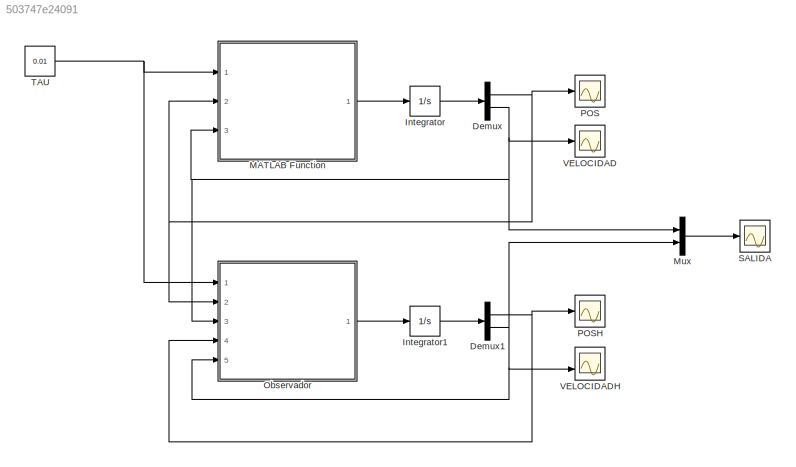
MODEL slx_503747e24091
KIND model
CONFIG AbsTol = auto
CONFIG EnableMultiTasking = off
CONFIG FixedStep = auto
CONFIG MaxStep = auto
CONFIG MinStep = auto
CONFIG RelTol = 1e-3
CONFIG SampleTimeConstraint = Unconstrained
CONFIG SolverName = VariableStepAuto
CONFIG StartTime = 0.0
CONFIG StopTime = 40
BLOCK [Demux] Demux
  Outputs = 2
  Ports = [1, 2]
BLOCK [Demux] Demux1
  Outputs = 2
  Ports = [1, 2]
BLOCK [Integrator] Integrator
  Ports = [1, 1]
BLOCK [Integrator] Integrator1
  Ports = [1, 1]
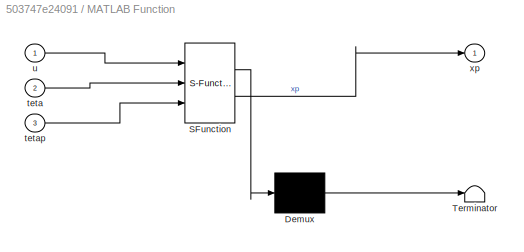
BLOCK [SubSystem] MATLAB Function
  ErrorFcn = Stateflow.Translate.translate
  PermitHierarchicalResolution = ExplicitOnly
  Ports = [3, 1]
  RequestExecContextInheritance = off
  SFBlockType = MATLAB Function
  TreatAsAtomicUnit = on
BLOCK [Demux] MATLAB Function/ Demux 
  Outputs = 1
  Ports = [1, 1]
BLOCK [S-Function] MATLAB Function/ SFunction 
  EnableBusSupport = on
  FunctionName = sf_sfun
  PortCounts = [3 2]
  Ports = [3, 2]
  SFcnIsStateOwnerBlock = off
  SFunctionDeploymentMode = off
  Tag = Stateflow S-Function 2
BLOCK [Terminator] MATLAB Function/ Terminator 
BLOCK [Inport] MATLAB Function/teta
  Port = 2
BLOCK [Inport] MATLAB Function/tetap
  Port = 3
BLOCK [Inport] MATLAB Function/u
BLOCK [Outport] MATLAB Function/xp
BLOCK [Mux] Mux
  DisplayOption = bar
  Inputs = 2
  Ports = [2, 1]
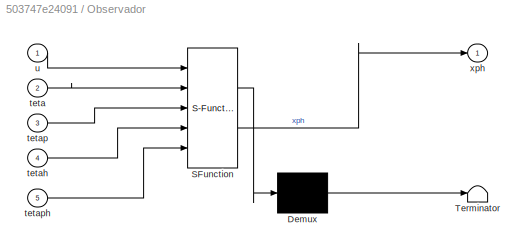
BLOCK [SubSystem] Observador
  ErrorFcn = Stateflow.Translate.translate
  PermitHierarchicalResolution = ExplicitOnly
  Ports = [5, 1]
  RequestExecContextInheritance = off
  SFBlockType = MATLAB Function
  TreatAsAtomicUnit = on
BLOCK [Demux] Observador/ Demux 
  Outputs = 1
  Ports = [1, 1]
BLOCK [S-Function] Observador/ SFunction 
  EnableBusSupport = on
  FunctionName = sf_sfun
  PortCounts = [5 2]
  Ports = [5, 2]
  SFcnIsStateOwnerBlock = off
  SFunctionDeploymentMode = off
  Tag = Stateflow S-Function 1
BLOCK [Terminator] Observador/ Terminator 
BLOCK [Inport] Observador/teta
  Port = 2
BLOCK [Inport] Observador/tetah
  Port = 4
BLOCK [Inport] Observador/tetap
  Port = 3
BLOCK [Inport] Observador/tetaph
  Port = 5
BLOCK [Inport] Observador/u
BLOCK [Outport] Observador/xph
BLOCK [Scope] POS
  Floating = off
  NumInputPorts = 1
  Ports = [1]
  ScopeSpecificationString = Simulink.scopes.TimeScopeBlockCfg('CurrentConfiguration', extmgr.ConfigurationSet(extmgr.Configuration('Core','General UI',true),extmgr.Configuration('Core','Source UI',true),extmgr.Configuration('Sources','WiredSimulink',true),extmgr.Configuration('Visuals','Time Domain',true,'SerializedDisplays',{struct('MinYLimReal','-2983.69101','MaxYLimReal','26853.21908','YLabelReal','','MinYLimMag','  0.000...<+1386ch>
BLOCK [Scope] POSH
  Floating = off
  NumInputPorts = 1
  Ports = [1]
  ScopeSpecificationString = Simulink.scopes.TimeScopeBlockCfg('CurrentConfiguration', extmgr.ConfigurationSet(extmgr.Configuration('Core','General UI',true),extmgr.Configuration('Core','Source UI',true),extmgr.Configuration('Sources','WiredSimulink',true,'DataLoggingVariableName','ScopeData2'),extmgr.Configuration('Visuals','Time Domain',true,'SerializedDisplays',{struct('MinYLimReal','-2983.69101','MaxYLimReal','26853.21908...<+1424ch>
BLOCK [Scope] SALIDA
  Floating = off
  NumInputPorts = 1
  Ports = [1]
  ScopeSpecificationString = Simulink.scopes.TimeScopeBlockCfg('CurrentConfiguration', extmgr.ConfigurationSet(extmgr.Configuration('Core','General UI',true),extmgr.Configuration('Core','Source UI',true),extmgr.Configuration('Sources','WiredSimulink',true,'DataLoggingVariableName','ScopeData5'),extmgr.Configuration('Visuals','Time Domain',true,'SerializedDisplays',{struct('MinYLimReal','-86.67662','MaxYLimReal','780.08958','Y...<+1414ch>
BLOCK [Constant] TAU
  Value = 0.01
BLOCK [Scope] VELOCIDAD
  Floating = off
  NumInputPorts = 1
  Ports = [1]
  ScopeSpecificationString = Simulink.scopes.TimeScopeBlockCfg('CurrentConfiguration', extmgr.ConfigurationSet(extmgr.Configuration('Core','General UI',true),extmgr.Configuration('Core','Source UI',true),extmgr.Configuration('Sources','WiredSimulink',true,'DataLoggingVariableName','ScopeData1'),extmgr.Configuration('Visuals','Time Domain',true,'SerializedDisplays',{struct('MinYLimReal','-86.67662','MaxYLimReal','780.08958','Y...<+1409ch>
BLOCK [Scope] VELOCIDADH
  Floating = off
  NumInputPorts = 2
  Ports = [2]
  ScopeSpecificationString = Simulink.scopes.TimeScopeBlockCfg('CurrentConfiguration', extmgr.ConfigurationSet(extmgr.Configuration('Core','General UI',true),extmgr.Configuration('Core','Source UI',true),extmgr.Configuration('Sources','WiredSimulink',true,'DataLoggingVariableName','ScopeData3'),extmgr.Configuration('Visuals','Time Domain',true,'SerializedDisplays',{struct('MinYLimReal','-86.67662','MaxYLimReal','780.08958','Y...<+1447ch>
NET Demux1:1 -> Observador:4, POSH:1
NET Demux1:2 -> Mux:2, Observador:5, VELOCIDADH:2
NET Demux:1 -> MATLAB Function:2, Observador:2, POS:1
NET Demux:2 -> MATLAB Function:3, Mux:1, Observador:3, VELOCIDAD:1
LINE Integrator1:1 -> Demux1:1
LINE Integrator:1 -> Demux:1
LINE MATLAB Function:1 -> Integrator:1
LINE Mux:1 -> SALIDA:1
LINE Observador:1 -> Integrator1:1
NET TAU:1 -> MATLAB Function:1, Observador:1
note: NET lines group one-source signal fan-out (src -> all destinations, sorted); 1:1 wires keep LINE
CHART Observador states=1 transitions=1
  STATE_LABEL 'eML_blk_kernel()'
  STATE_LABEL 'SCRIPT:\nfunction xph = fcn(u, teta, tetap, tetah, tetaph)\n% Parámetros\nJ = 80.7e-6;\nB1 = 14.41e-6;\nK = [19.8214; 96.8214]\n\nA = [0, 1; 0, -B1/J];\nB = [0; 1/J];\nC = [1, 0];\n\n% Observador\nxh = [tetah; tetaph];\nx = [teta; tetap];\ny = C * x;\nyh = C *xh;\nxph = A * xh + B * u + K *(y - yh);'
CHART MATLAB Function states=1 transitions=1
  STATE_LABEL 'eML_blk_kernel()'
  STATE_LABEL 'SCRIPT:\nfunction xp = fcn(u, teta, tetap)\n% Parámetros\nJ = 80.7e-6;\nB1 = 14.41e-6;\n\nA = [0, 1; 0, -B1/J];\nB = [0; 1/J];\n% C = [1, 0];\n\n% Planta\nx = [teta; tetap]\nxp = A * x + B*u; '
CHART  states=0 transitions=0
CHART  states=0 transitions=0
